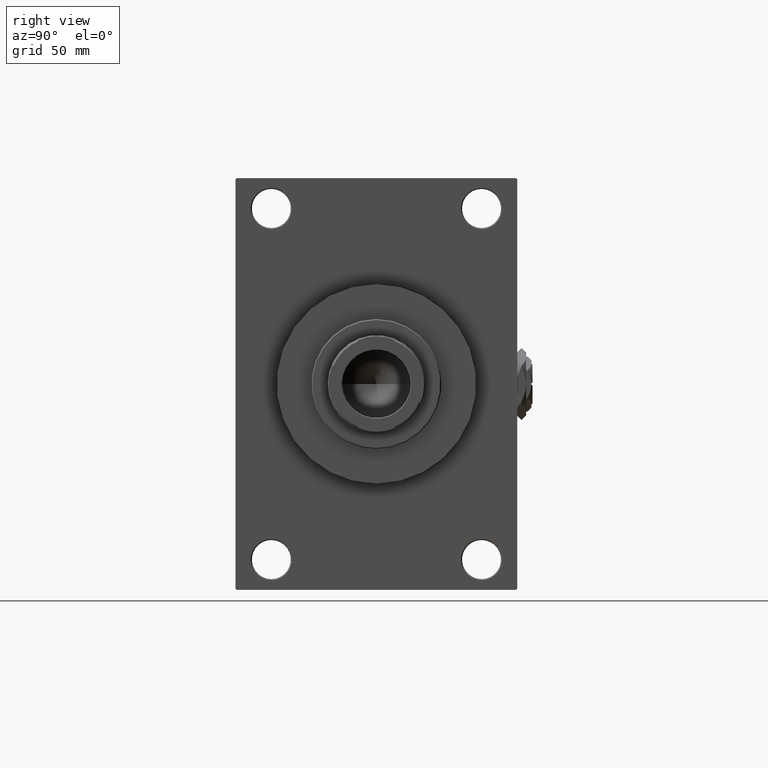
[diagram: clean part render]
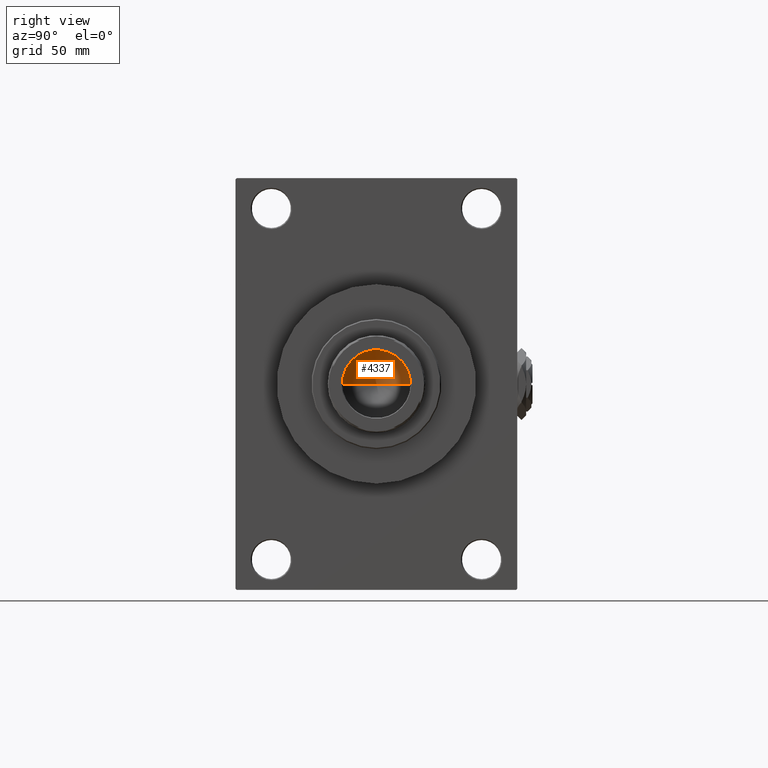
[diagram: same view with one face highlighted and labeled with its STEP entity id]
A machine part, right view. The second image highlights one B-rep face of the part: STEP entity #4337.
In plain terms, the highlighted conical surface has half-angle 59 deg.
Its self-contained STEP definition (entity closure, byte-faithful):
#2434 = CARTESIAN_POINT ( 'NONE',  ( 0.000000000000000000, 0.000000000000000000, 123.0000000000000142 ) ) ;
#3486 = VECTOR ( 'NONE', #35047, 1000.000000000000000 ) ;
#4094 = VERTEX_POINT ( 'NONE', #14958 ) ;
#4337 = ADVANCED_FACE ( 'NONE', ( #5010 ), #45996, .F. ) ;
#5010 = FACE_OUTER_BOUND ( 'NONE', #42449, .T. ) ;
#6761 = ORIENTED_EDGE ( 'NONE', *, *, #41188, .T. ) ;
#7820 = CARTESIAN_POINT ( 'NONE',  ( 0.000000000000000000, 0.000000000000000000, 123.0000000000000142 ) ) ;
#9687 = CARTESIAN_POINT ( 'NONE',  ( 15.74999999999998934, 0.000000000000000000, 123.0000000000000142 ) ) ;
#10343 = VERTEX_POINT ( 'NONE', #29320 ) ;
#12035 = CIRCLE ( 'NONE', #24898, 15.74999999999998934 ) ;
#13471 = DIRECTION ( 'NONE',  ( 0.8571673007021115565, 0.000000000000000000, 0.5150380749100554878 ) ) ;
#14958 = CARTESIAN_POINT ( 'NONE',  ( -1.584115414415908206E-14, 0.000000000000000000, 113.5364452503159214 ) ) ;
#16058 = VERTEX_POINT ( 'NONE', #21537 ) ;
#16336 = ORIENTED_EDGE ( 'NONE', *, *, #18020, .F. ) ;
#18020 = EDGE_CURVE ( 'NONE', #4094, #10343, #21279, .T. ) ;
#21279 = LINE ( 'NONE', #9687, #48762 ) ;
#21537 = CARTESIAN_POINT ( 'NONE',  ( -15.74999999999998934, 1.928818708657080161E-15, 123.0000000000000142 ) ) ;
#23198 = DIRECTION ( 'NONE',  ( 1.000000000000000000, 0.000000000000000000, 0.000000000000000000 ) ) ;
#24898 = AXIS2_PLACEMENT_3D ( 'NONE', #2434, #25374, #40725 ) ;
#25374 = DIRECTION ( 'NONE',  ( -0.000000000000000000, -0.000000000000000000, 1.000000000000000000 ) ) ;
#27214 = DIRECTION ( 'NONE',  ( -0.000000000000000000, -0.000000000000000000, 1.000000000000000000 ) ) ;
#27252 = CARTESIAN_POINT ( 'NONE',  ( -15.74999999999998934, 1.928818708657080161E-15, 123.0000000000000142 ) ) ;
#29011 = EDGE_CURVE ( 'NONE', #16058, #10343, #12035, .T. ) ;
#29320 = CARTESIAN_POINT ( 'NONE',  ( 15.74999999999998934, 0.000000000000000000, 123.0000000000000142 ) ) ;
#30508 = ORIENTED_EDGE ( 'NONE', *, *, #29011, .T. ) ;
#33287 = LINE ( 'NONE', #27252, #3486 ) ;
#35047 = DIRECTION ( 'NONE',  ( -0.8571673007021115565, 1.049727191138617710E-16, 0.5150380749100554878 ) ) ;
#39581 = AXIS2_PLACEMENT_3D ( 'NONE', #7820, #27214, #23198 ) ;
#40725 = DIRECTION ( 'NONE',  ( 1.000000000000000000, 0.000000000000000000, 0.000000000000000000 ) ) ;
#41188 = EDGE_CURVE ( 'NONE', #4094, #16058, #33287, .T. ) ;
#42449 = EDGE_LOOP ( 'NONE', ( #16336, #6761, #30508 ) ) ;
#45996 = CONICAL_SURFACE ( 'NONE', #39581, 15.74999999999998934, 1.029744258676652979 ) ;
#48762 = VECTOR ( 'NONE', #13471, 1000.000000000000000 ) ;